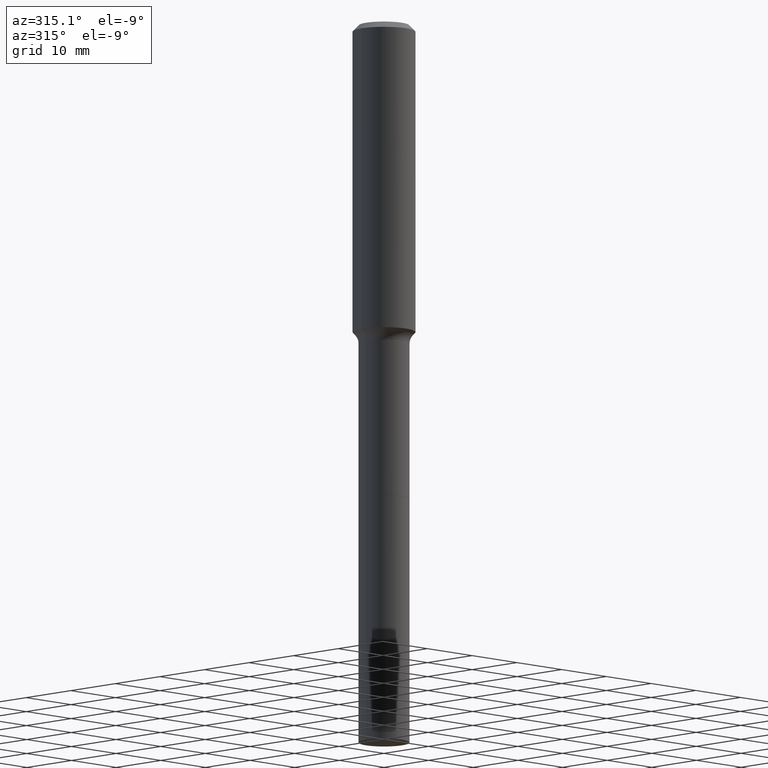
[diagram: clean part render]
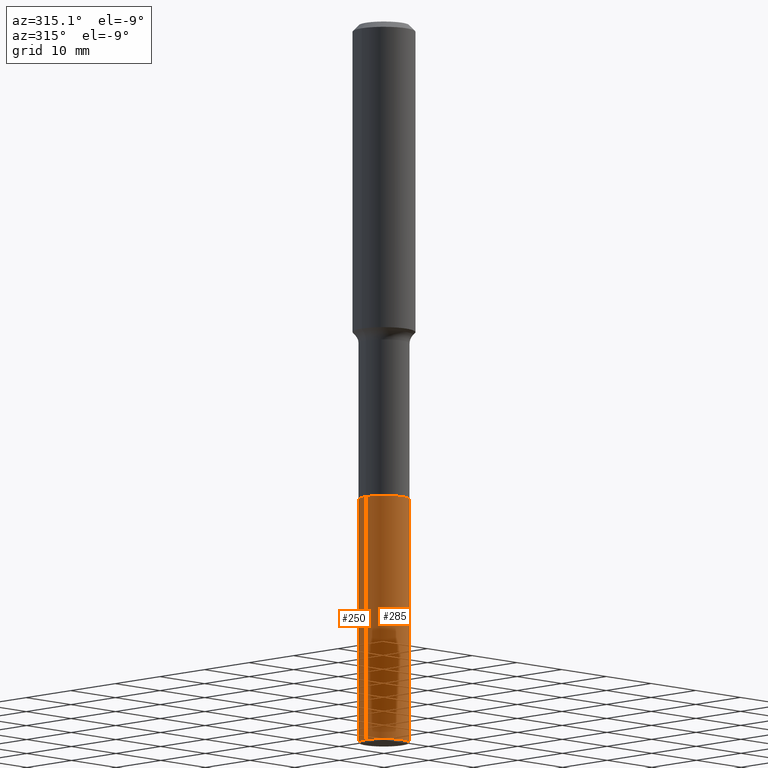
[diagram: same view with one multi-face feature highlighted, each face labeled with its STEP entity id]
A machine part, auxiliary view. The highlighted faces form ONE feature: a constant-radius fillet chain: 2 tangent blend faces with common blend radius 4.05 mm. The faces share edges in the B-rep.
Their STEP definitions:
[1] entity #285 (Cylinder):
#18 = CARTESIAN_POINT ( 'NONE',  ( -0.1594500000000000361, -1.199535859001462902E-14, -4.527599999999999625 ) ) ;
#32 = DIRECTION ( 'NONE',  ( 1.000000000000000000, -6.982962677686265133E-15, 0.000000000000000000 ) ) ;
#74 = EDGE_CURVE ( 'NONE', #77, #349, #214, .T. ) ;
#77 = VERTEX_POINT ( 'NONE', #295 ) ;
#109 = EDGE_CURVE ( 'NONE', #466, #458, #440, .T. ) ;
#126 = CARTESIAN_POINT ( 'NONE',  ( 7.318309949389638795E-29, -1.044860705462199652E-14, -2.992599999999999483 ) ) ;
#137 = ORIENTED_EDGE ( 'NONE', *, *, #229, .F. ) ;
#164 = DIRECTION ( 'NONE',  ( 1.000000000000000000, -6.982962677686265133E-15, 0.000000000000000000 ) ) ;
#171 = DIRECTION ( 'NONE',  ( -2.445468806185136877E-29, 3.491481338843145188E-15, 1.000000000000000000 ) ) ;
#177 = CARTESIAN_POINT ( 'NONE',  ( 0.1594500000000000361, -1.692146430870329752E-14, -4.527599999999999625 ) ) ;
#181 = DIRECTION ( 'NONE',  ( -2.445468806185136877E-29, 3.491481338843145188E-15, 1.000000000000000000 ) ) ;
#203 = AXIS2_PLACEMENT_3D ( 'NONE', #231, #394, #32 ) ;
#207 = DIRECTION ( 'NONE',  ( -2.445468806185136597E-29, 3.491481338843145583E-15, 1.000000000000000000 ) ) ;
#209 = CARTESIAN_POINT ( 'NONE',  ( 0.1594500000000000361, -1.156204045357907173E-14, -2.992599999999999483 ) ) ;
#214 = CIRCLE ( 'NONE', #260, 0.1594500000000000361 ) ;
#229 = EDGE_CURVE ( 'NONE', #466, #77, #262, .T. ) ;
#231 = CARTESIAN_POINT ( 'NONE',  ( 7.318309949389638795E-29, -1.044860705462199652E-14, -2.992599999999999483 ) ) ;
#244 = LINE ( 'NONE', #209, #517 ) ;
#260 = AXIS2_PLACEMENT_3D ( 'NONE', #126, #286, #498 ) ;
#262 = LINE ( 'NONE', #467, #317 ) ;
#270 = FACE_OUTER_BOUND ( 'NONE', #437, .T. ) ;
#285 = ADVANCED_FACE ( 'NONE', ( #270 ), #432, .T. ) ;
#286 = DIRECTION ( 'NONE',  ( -2.445468806185136597E-29, 3.491481338843145583E-15, 1.000000000000000000 ) ) ;
#295 = CARTESIAN_POINT ( 'NONE',  ( -0.1594500000000000361, -1.199535859001462902E-14, -2.992599999999999483 ) ) ;
#307 = ORIENTED_EDGE ( 'NONE', *, *, #74, .F. ) ;
#317 = VECTOR ( 'NONE', #181, 39.37007874015748143 ) ;
#349 = VERTEX_POINT ( 'NONE', #397 ) ;
#371 = CARTESIAN_POINT ( 'NONE',  ( 1.107210456688382298E-28, -1.580803090974622389E-14, -4.527599999999999625 ) ) ;
#394 = DIRECTION ( 'NONE',  ( -2.445468806185136597E-29, 3.491481338843145583E-15, 1.000000000000000000 ) ) ;
#397 = CARTESIAN_POINT ( 'NONE',  ( 0.1594500000000000361, -1.156204045357907173E-14, -2.992599999999999483 ) ) ;
#428 = AXIS2_PLACEMENT_3D ( 'NONE', #371, #207, #164 ) ;
#432 = CYLINDRICAL_SURFACE ( 'NONE', #203, 0.1594500000000000361 ) ;
#437 = EDGE_LOOP ( 'NONE', ( #137, #494, #475, #307 ) ) ;
#440 = CIRCLE ( 'NONE', #428, 0.1594500000000000361 ) ;
#454 = EDGE_CURVE ( 'NONE', #458, #349, #244, .T. ) ;
#458 = VERTEX_POINT ( 'NONE', #177 ) ;
#466 = VERTEX_POINT ( 'NONE', #18 ) ;
#467 = CARTESIAN_POINT ( 'NONE',  ( -0.1594500000000000361, -9.315646662452514548E-15, -2.992599999999999483 ) ) ;
#475 = ORIENTED_EDGE ( 'NONE', *, *, #454, .T. ) ;
#494 = ORIENTED_EDGE ( 'NONE', *, *, #109, .T. ) ;
#498 = DIRECTION ( 'NONE',  ( 1.000000000000000000, -6.982962677686265133E-15, 0.000000000000000000 ) ) ;
#517 = VECTOR ( 'NONE', #171, 39.37007874015748143 ) ;
[2] entity #250 (Cylinder):
#2 = CARTESIAN_POINT ( 'NONE',  ( 1.107210456688382298E-28, -1.580803090974622389E-14, -4.527599999999999625 ) ) ;
#15 = AXIS2_PLACEMENT_3D ( 'NONE', #2, #119, #79 ) ;
#18 = CARTESIAN_POINT ( 'NONE',  ( -0.1594500000000000361, -1.199535859001462902E-14, -4.527599999999999625 ) ) ;
#30 = DIRECTION ( 'NONE',  ( 1.000000000000000000, -6.982962677686265133E-15, 0.000000000000000000 ) ) ;
#60 = FACE_OUTER_BOUND ( 'NONE', #230, .T. ) ;
#66 = CYLINDRICAL_SURFACE ( 'NONE', #373, 0.1594500000000000361 ) ;
#70 = DIRECTION ( 'NONE',  ( -2.445468806185136597E-29, 3.491481338843145583E-15, 1.000000000000000000 ) ) ;
#77 = VERTEX_POINT ( 'NONE', #295 ) ;
#79 = DIRECTION ( 'NONE',  ( 1.000000000000000000, -6.982962677686265133E-15, 0.000000000000000000 ) ) ;
#119 = DIRECTION ( 'NONE',  ( -2.445468806185136597E-29, 3.491481338843145583E-15, 1.000000000000000000 ) ) ;
#143 = DIRECTION ( 'NONE',  ( 1.000000000000000000, -6.982962677686265133E-15, 0.000000000000000000 ) ) ;
#155 = ORIENTED_EDGE ( 'NONE', *, *, #229, .T. ) ;
#171 = DIRECTION ( 'NONE',  ( -2.445468806185136877E-29, 3.491481338843145188E-15, 1.000000000000000000 ) ) ;
#173 = EDGE_CURVE ( 'NONE', #349, #77, #335, .T. ) ;
#177 = CARTESIAN_POINT ( 'NONE',  ( 0.1594500000000000361, -1.692146430870329752E-14, -4.527599999999999625 ) ) ;
#180 = CARTESIAN_POINT ( 'NONE',  ( 7.318309949389638795E-29, -1.044860705462199652E-14, -2.992599999999999483 ) ) ;
#181 = DIRECTION ( 'NONE',  ( -2.445468806185136877E-29, 3.491481338843145188E-15, 1.000000000000000000 ) ) ;
#209 = CARTESIAN_POINT ( 'NONE',  ( 0.1594500000000000361, -1.156204045357907173E-14, -2.992599999999999483 ) ) ;
#229 = EDGE_CURVE ( 'NONE', #466, #77, #262, .T. ) ;
#230 = EDGE_LOOP ( 'NONE', ( #506, #155, #359, #516 ) ) ;
#244 = LINE ( 'NONE', #209, #517 ) ;
#250 = ADVANCED_FACE ( 'NONE', ( #60 ), #66, .T. ) ;
#262 = LINE ( 'NONE', #467, #317 ) ;
#295 = CARTESIAN_POINT ( 'NONE',  ( -0.1594500000000000361, -1.199535859001462902E-14, -2.992599999999999483 ) ) ;
#299 = CIRCLE ( 'NONE', #15, 0.1594500000000000361 ) ;
#306 = DIRECTION ( 'NONE',  ( -2.445468806185136597E-29, 3.491481338843145583E-15, 1.000000000000000000 ) ) ;
#317 = VECTOR ( 'NONE', #181, 39.37007874015748143 ) ;
#335 = CIRCLE ( 'NONE', #389, 0.1594500000000000361 ) ;
#349 = VERTEX_POINT ( 'NONE', #397 ) ;
#359 = ORIENTED_EDGE ( 'NONE', *, *, #173, .F. ) ;
#373 = AXIS2_PLACEMENT_3D ( 'NONE', #423, #70, #30 ) ;
#389 = AXIS2_PLACEMENT_3D ( 'NONE', #180, #306, #143 ) ;
#397 = CARTESIAN_POINT ( 'NONE',  ( 0.1594500000000000361, -1.156204045357907173E-14, -2.992599999999999483 ) ) ;
#411 = EDGE_CURVE ( 'NONE', #458, #466, #299, .T. ) ;
#423 = CARTESIAN_POINT ( 'NONE',  ( 7.318309949389638795E-29, -1.044860705462199652E-14, -2.992599999999999483 ) ) ;
#454 = EDGE_CURVE ( 'NONE', #458, #349, #244, .T. ) ;
#458 = VERTEX_POINT ( 'NONE', #177 ) ;
#466 = VERTEX_POINT ( 'NONE', #18 ) ;
#467 = CARTESIAN_POINT ( 'NONE',  ( -0.1594500000000000361, -9.315646662452514548E-15, -2.992599999999999483 ) ) ;
#506 = ORIENTED_EDGE ( 'NONE', *, *, #411, .T. ) ;
#516 = ORIENTED_EDGE ( 'NONE', *, *, #454, .F. ) ;
#517 = VECTOR ( 'NONE', #171, 39.37007874015748143 ) ;